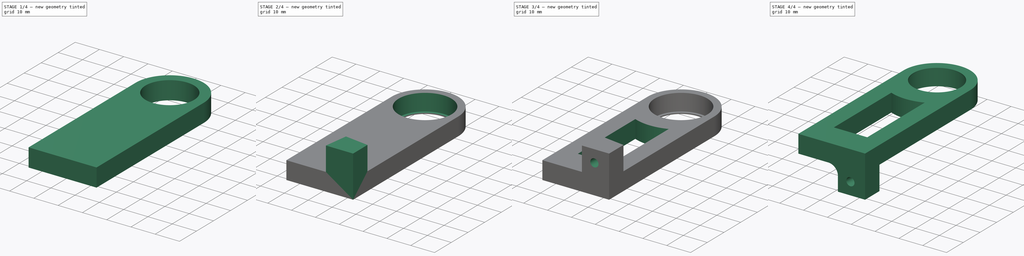
[diagram: build sequence overview — one tinted view per stage of 4, left to right]
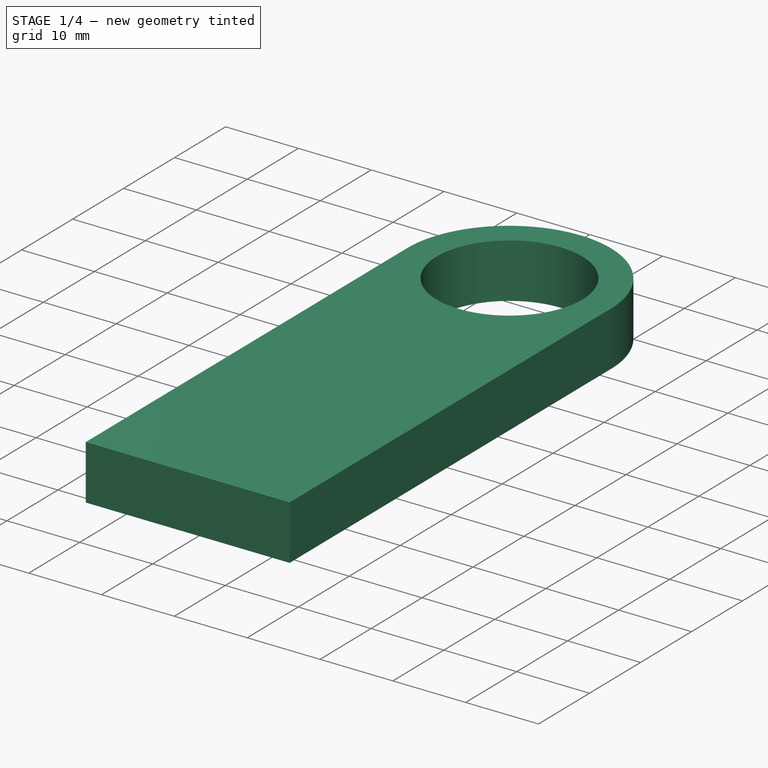
[diagram: stage 1 of 4 — iso view after this stage's code; geometry added in this stage tinted green]
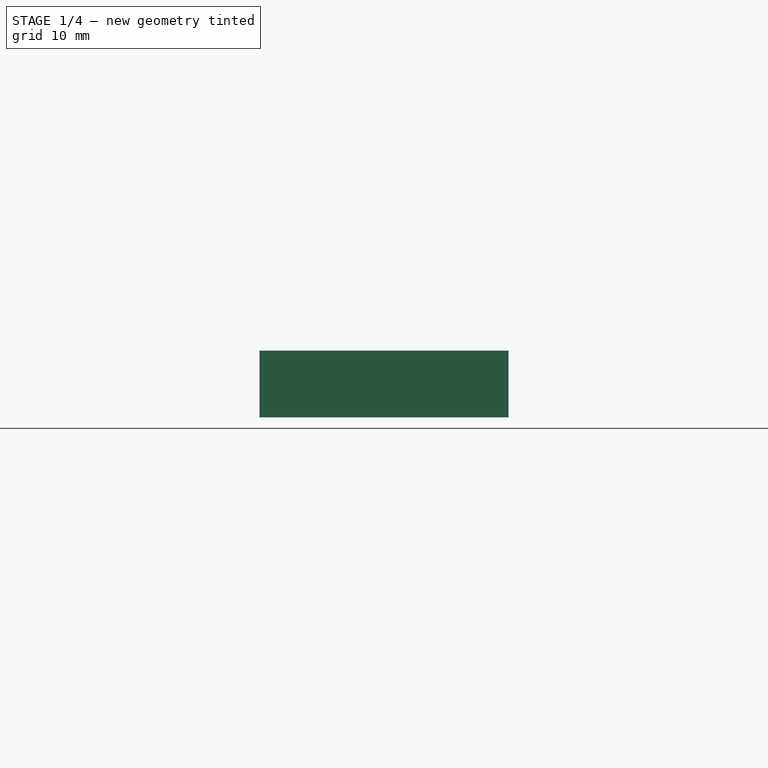
[diagram: stage 1 of 4 — front view after this stage's code; geometry added in this stage tinted green]
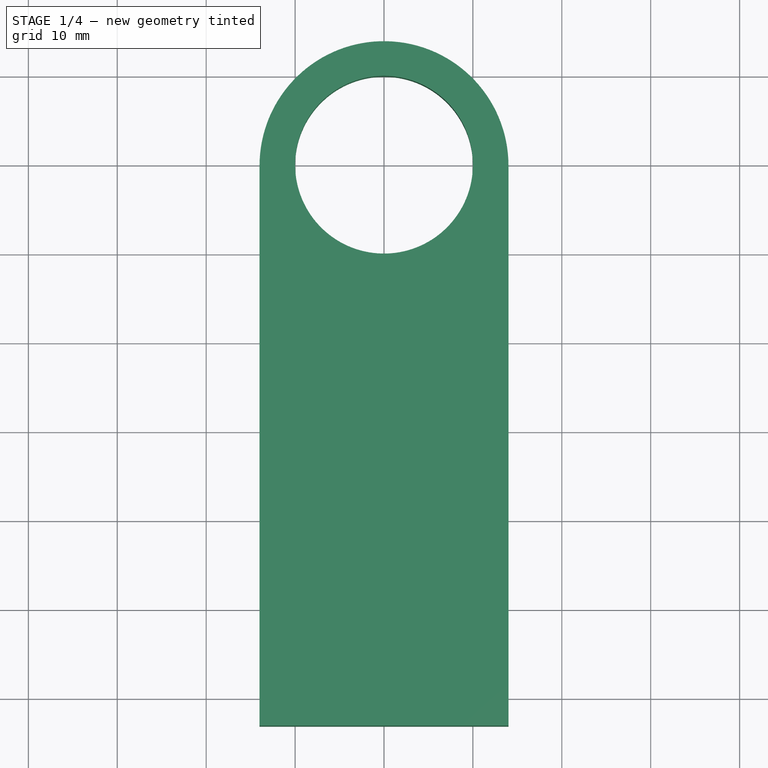
[diagram: stage 1 of 4 — top view after this stage's code; geometry added in this stage tinted green]
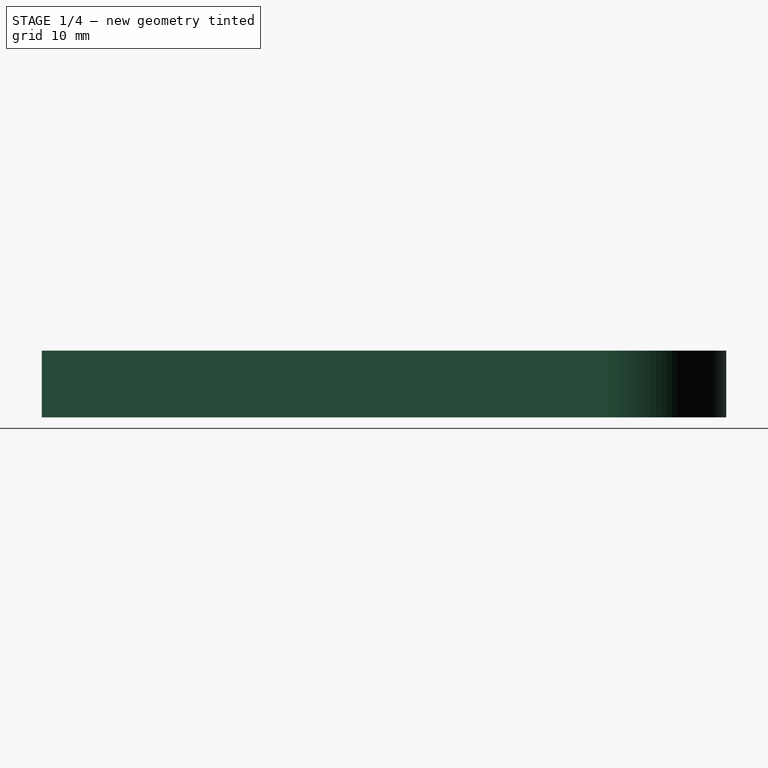
[diagram: stage 1 of 4 — right view after this stage's code; geometry added in this stage tinted green]
FCSTD DOCUMENT  (FreeCAD 0.14R3702 (Git))
Label: soportes-laterales
License: CC-BY 3.0
LicenseURL: http://creativecommons.org/licenses/by/3.0/
objects: Sketcher::SketchObject×7, PartDesign::Pocket×5, Part::Extrusion×1, PartDesign::Pad×1, PartDesign::Chamfer×1, PartDesign::Fillet×1, Part::Mirroring×1
note: 23 computed .brp shape members not serialized (recipe doc carries the construction recipe); baked Part::Feature solids carry a one-line shape summary decoded from their .brp

FEATURE [Sketcher::SketchObject] Sketch002  label="sk-main"
  sketch-geometry (4):
    g0: LineSegment StartX=-14 StartY=-0.10607 StartZ=0 EndX=-14 EndY=-63.1061 EndZ=0
    g1: LineSegment StartX=-14 StartY=-63.1061 StartZ=0 EndX=14 EndY=-63.1061 EndZ=0
    g2: LineSegment StartX=14 StartY=-63.1061 StartZ=0 EndX=14 EndY=-0.10607 EndZ=0
    g3: ArcOfCircle CenterX=0 CenterY=-0.10607 CenterZ=0 NormalX=0 NormalY=0 NormalZ=1 Radius=14 StartAngle=-3.83e-10 EndAngle=3.14159
  constraints (12):
    c: Coincident(g0,g1)
    c: Coincident(g1,g2)
    c: Coincident(g0,g3)
    c: Coincident(g2,g3)
    c: Horizontal(g1)
    c: Vertical(g0)
    c: Vertical(g2)
    c: Tangent(g0,g3)
    c: Equal(g2,g0)
    c: Symmetric(g2,g0,g-2)
    c: Radius(g3) = 14
    c: DistanceY(g2) = 63
FEATURE [Part::Extrusion] Extrude  label="cuerpo-principal"
  Base = -> Sketch002
  Dir = (0,0,7.5)
  Solid = true
FEATURE [Sketcher::SketchObject] Sketch003  label="sk-tope-rodamiento"
  Placement = pos=(0,0,7.5) rot=(0,0,1;0rad)
  Support = -> Extrude [Face6]
  sketch-geometry (1):
    g0: Circle CenterX=0 CenterY=0 CenterZ=0 NormalX=0 NormalY=0 NormalZ=1 Radius=10
  constraints (2):
    c: Radius(g0) = 10
    c: Coincident(g0,g-1)
FEATURE [PartDesign::Pocket] Pocket  label="sk-tope-rodamiento001"
  Length = 7
  Sketch = -> Sketch003
  Type = 1
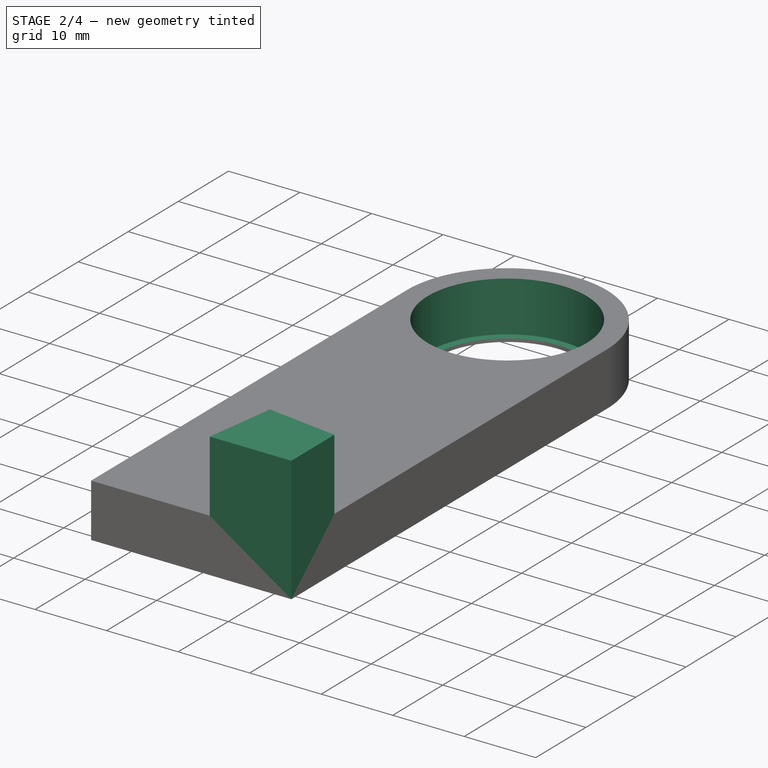
[diagram: stage 2 of 4 — iso view after this stage's code; geometry added in this stage tinted green]
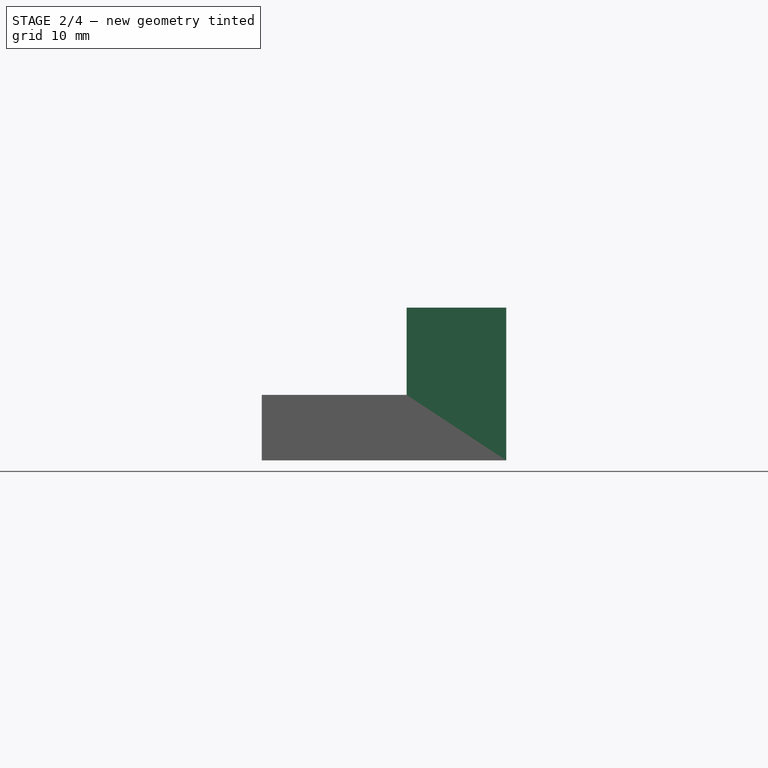
[diagram: stage 2 of 4 — front view after this stage's code; geometry added in this stage tinted green]
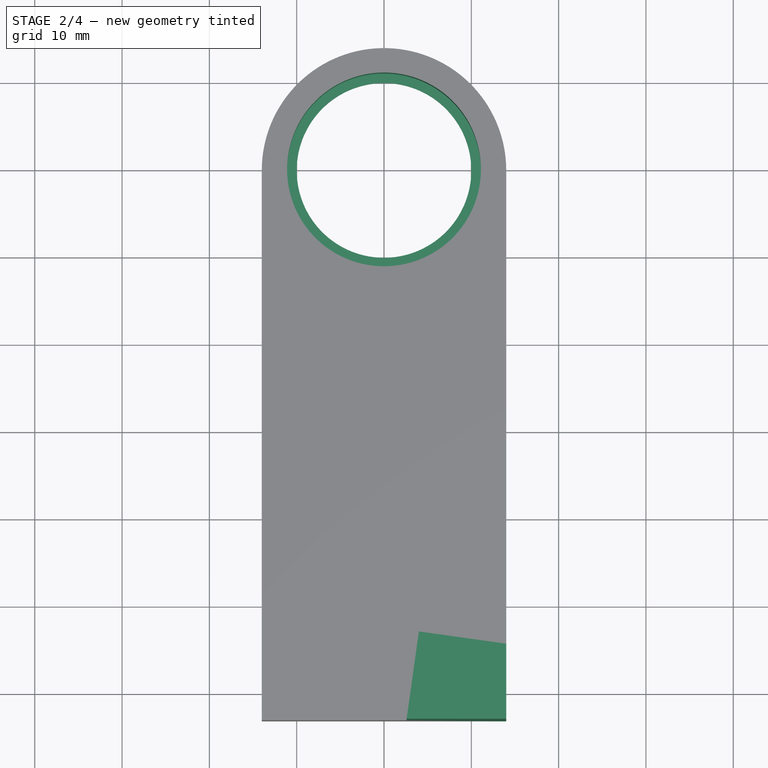
[diagram: stage 2 of 4 — top view after this stage's code; geometry added in this stage tinted green]
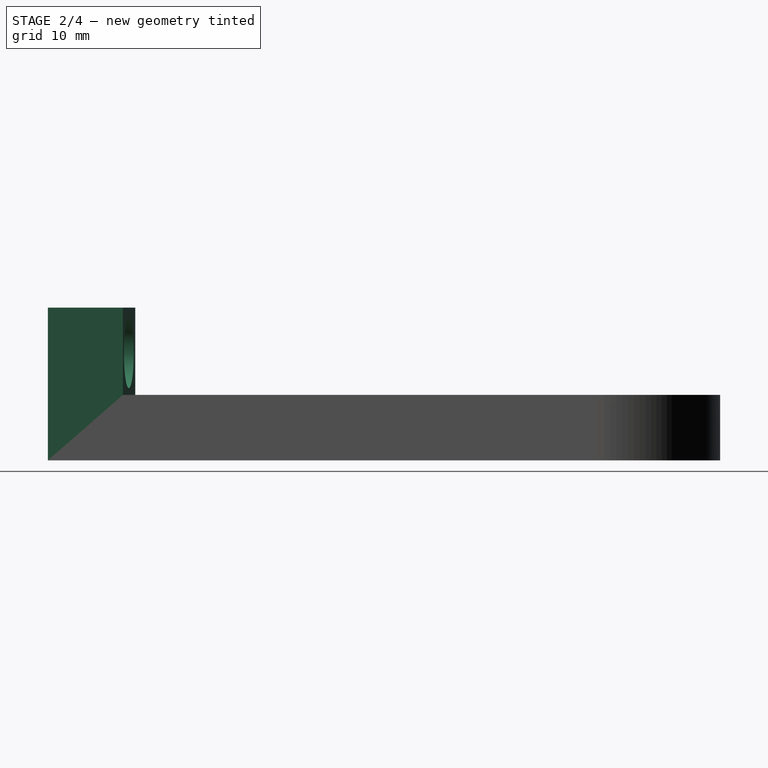
[diagram: stage 2 of 4 — right view after this stage's code; geometry added in this stage tinted green]
FEATURE [Sketcher::SketchObject] Sketch004  label="sk-hueco-rodamento"
  Placement = pos=(0,0,7.5) rot=(0,0,1;0rad)
  Support = -> Pocket [Face5]
  sketch-geometry (1):
    g0: Circle CenterX=0 CenterY=0 CenterZ=0 NormalX=0 NormalY=0 NormalZ=1 Radius=11.1
  constraints (2):
    c: Coincident(g0,g-1)
    c: Radius(g0) = 11.1
FEATURE [PartDesign::Pocket] Pocket001  label="pk-hueco-rodamiento"
  Length = 7.05
  Sketch = -> Sketch004
  Type = 0
FEATURE [Sketcher::SketchObject] Sketch005  label="sk-cubilete-tornillo"
  ExternalGeometry = -> [Pocket001]
  Placement = pos=(0,0,7.5) rot=(0,0,1;0rad)
  Support = -> Pocket001 [Face5]
  sketch-geometry (4):
    g0: LineSegment StartX=4 StartY=-53.1061 StartZ=0 EndX=14 EndY=-54.5115 EndZ=0
    g1: LineSegment StartX=14 StartY=-54.5115 StartZ=0 EndX=14 EndY=-63.1061 EndZ=0
    g2: LineSegment StartX=14 StartY=-63.1061 StartZ=0 EndX=2.59459 EndY=-63.1061 EndZ=0
    g3: LineSegment StartX=2.59459 StartY=-63.1061 StartZ=0 EndX=4 EndY=-53.1061 EndZ=0
  constraints (12):
    c: Coincident(g0,g1)
    c: Coincident(g1,g2)
    c: Coincident(g2,g3)
    c: Coincident(g3,g0)
    c: Horizontal(g2)
    c: Vertical(g1)
    c: PointOnObject(g1,g-3)
    c: DistanceY(g3) = 10
    c: DistanceX(g0) = 10
    c: PointOnObject(g0,g-4)
    c: Angle(g3) = 1.43117
    c: Angle(g3,g0) = 1.5708
FEATURE [PartDesign::Pad] Pad001  label="pad-cubilete-tornillo"
  Length = 10
  Length2 = 5
  Sketch = -> Sketch005
  Type = 0
FEATURE [Sketcher::SketchObject] Sketch006  label="sk-hueco-tornillo"
  ExternalGeometry = -> [Pad001]
  Placement = pos=(-7.24153,-51.5262,0) rot=(0.049385,0.706244,0.706244;3.0429rad)
  Support = -> Pad001 [Face7]
  sketch-geometry (4):
    g0: Circle CenterX=-16.5823 CenterY=12.2697 CenterZ=0 NormalX=0 NormalY=0 NormalZ=1 Radius=4
    g1: LineSegment [constr] StartX=-16.5823 StartY=12.2697 StartZ=0 EndX=-11.352 EndY=12.2697 EndZ=0
    g2: LineSegment [constr] StartX=-16.5823 StartY=12.2697 StartZ=0 EndX=-16.5823 EndY=17.5 EndZ=0
    g3: LineSegment [constr] StartX=-16.22 StartY=12.5 StartZ=0 EndX=-21.4503 EndY=12.5 EndZ=0
  constraints (11):
    c: Vertical(g2)
    c: Horizontal(g1)
    c: Coincident(g0,g1)
    c: Coincident(g0,g2)
    c: PointOnObject(g2,g-5)
    c: PointOnObject(g1,g-4)
    c: Equal(g1,g2)
    c: Horizontal(g3)
    c: PointOnObject(g3,g-3)
    c: Equal(g3,g2)
    c: Radius(g0) = 4
FEATURE [PartDesign::Pocket] Pocket002  label="pk-hueco-tornillo"
  Length = 4
  Sketch = -> Sketch006
  Type = 0
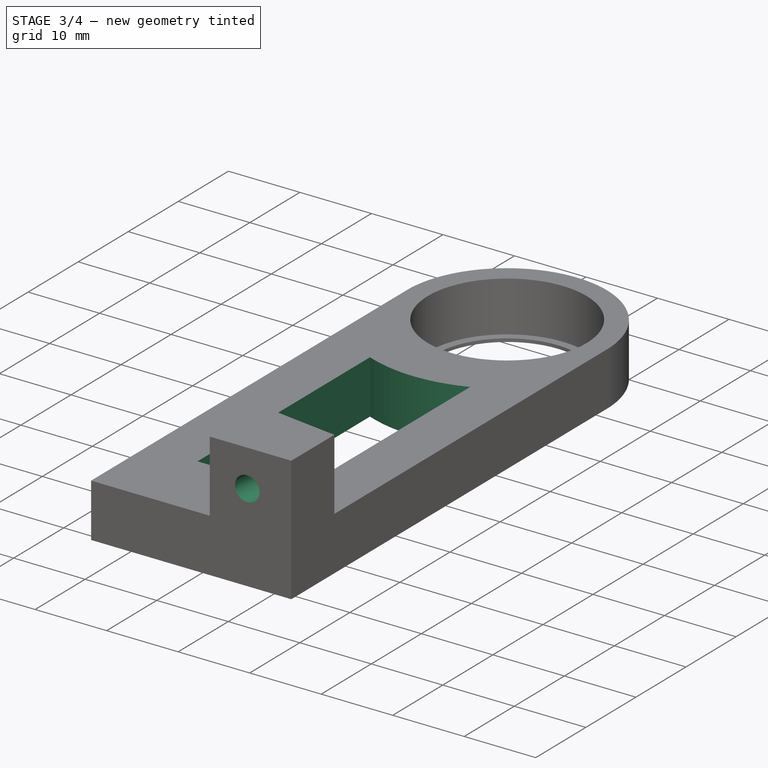
[diagram: stage 3 of 4 — iso view after this stage's code; geometry added in this stage tinted green]
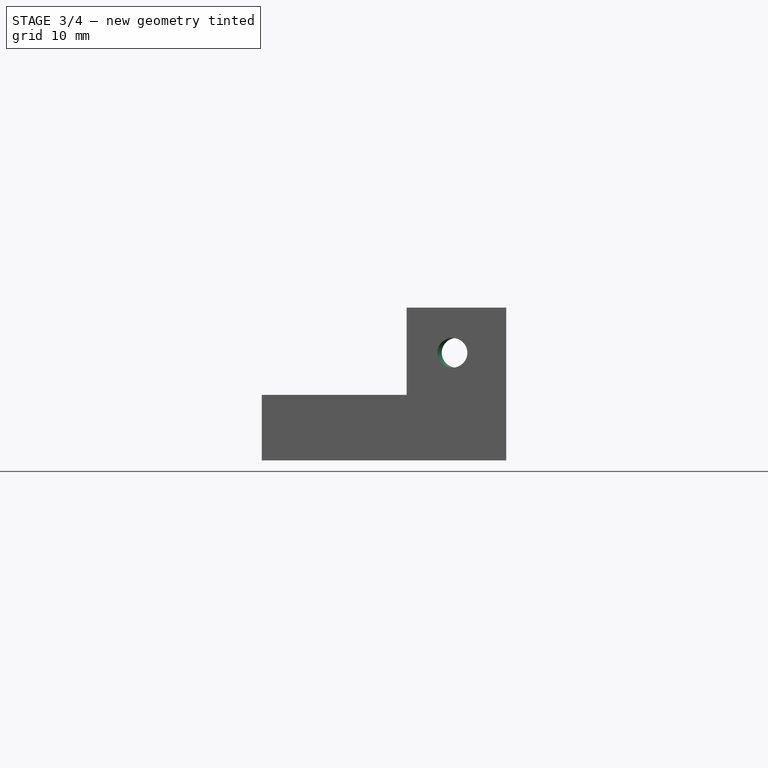
[diagram: stage 3 of 4 — front view after this stage's code; geometry added in this stage tinted green]
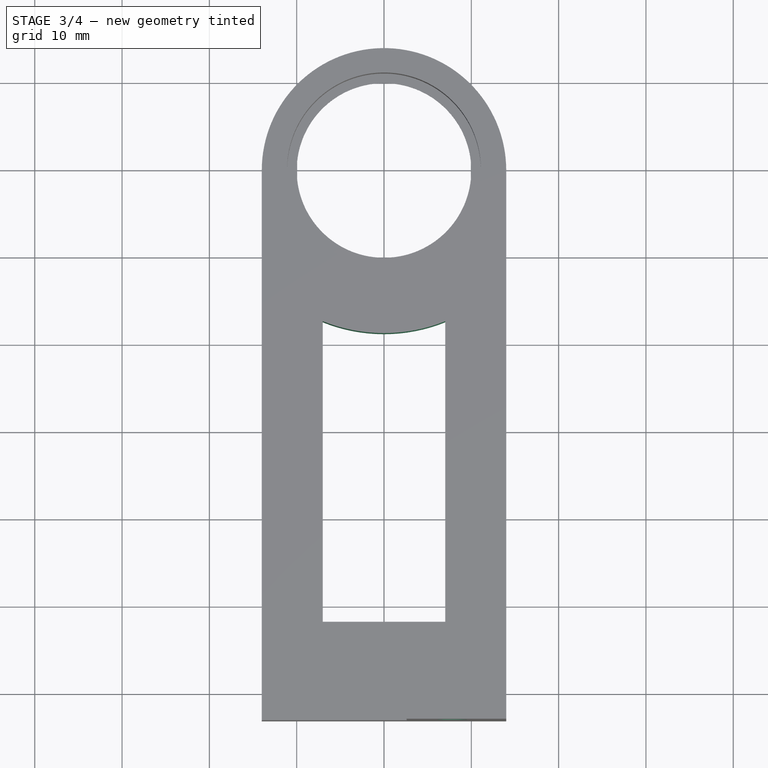
[diagram: stage 3 of 4 — top view after this stage's code; geometry added in this stage tinted green]
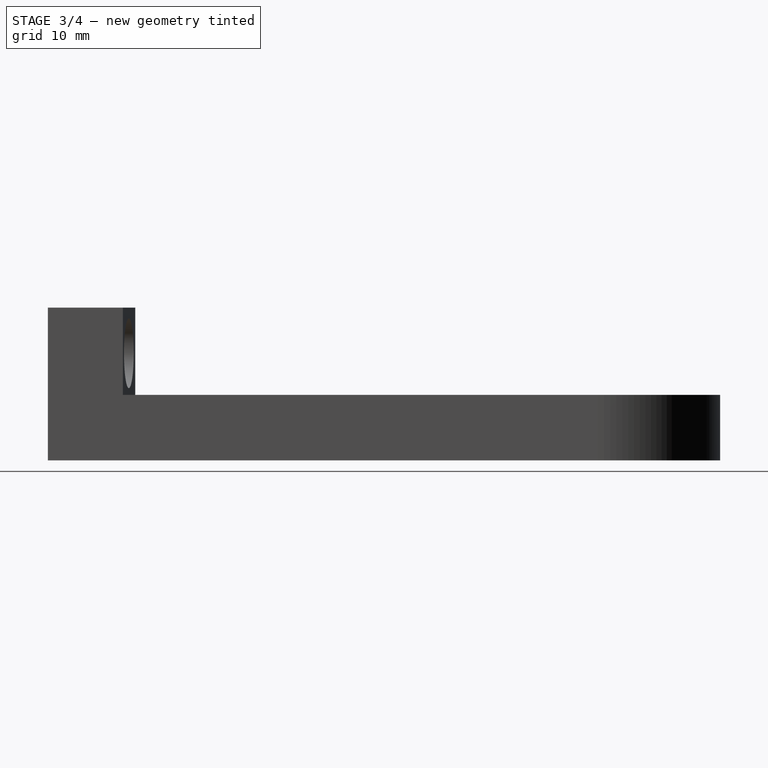
[diagram: stage 3 of 4 — right view after this stage's code; geometry added in this stage tinted green]
FEATURE [Sketcher::SketchObject] Sketch007  label="sk-taladro-tornillo"
  Placement = pos=(-7.79822,-55.4872,0) rot=(0.049385,0.706244,0.706244;3.0429rad)
  Support = -> Pocket002 [Face14]
  sketch-geometry (1):
    g0: Circle CenterX=-16.5361 CenterY=12.323 CenterZ=0 NormalX=0 NormalY=0 NormalZ=1 Radius=1.7
  constraints (1):
    c: Radius(g0) = 1.7
FEATURE [PartDesign::Pocket] Pocket003  label="pk-taladro-tornillo"
  Length = 5
  Sketch = -> Sketch007
  Type = 1
FEATURE [PartDesign::Chamfer] Chamfer  label="chanfer-tornillo"
  Base = -> Pocket003 [Edge25]
  Size = 2
FEATURE [Sketcher::SketchObject] Sketch008  label="sk-vaciado-cuerpo"
  ExternalGeometry = -> [Chamfer]
  Placement = pos=(0,0,7.5) rot=(0,0,1;0rad)
  Support = -> Chamfer [Face7]
  sketch-geometry (4):
    g0: ArcOfCircle CenterX=0 CenterY=0 CenterZ=0 NormalX=0 NormalY=0 NormalZ=1 Radius=18.7545 StartAngle=4.32924 EndAngle=5.09554
    g1: LineSegment StartX=-7.01127 StartY=-17.3947 StartZ=0 EndX=-7.01127 EndY=-51.8242 EndZ=0
    g2: LineSegment StartX=7.01127 StartY=-51.8242 StartZ=0 EndX=7.01127 EndY=-17.3947 EndZ=0
    g3: LineSegment StartX=-7.01127 StartY=-51.8242 StartZ=0 EndX=7.01127 EndY=-51.8242 EndZ=0
  constraints (9):
    c: Coincident(g0,g-3)
    c: Coincident(g0,g2)
    c: Coincident(g0,g1)
    c: Vertical(g1)
    c: Vertical(g2)
    c: Symmetric(g0,g0,g-2)
    c: Coincident(g1,g3)
    c: Coincident(g2,g3)
    c: Horizontal(g3)
FEATURE [PartDesign::Pocket] Pocket004  label="pk-vaciado-cuerpo"
  Length = 5
  Sketch = -> Sketch008
  Type = 1
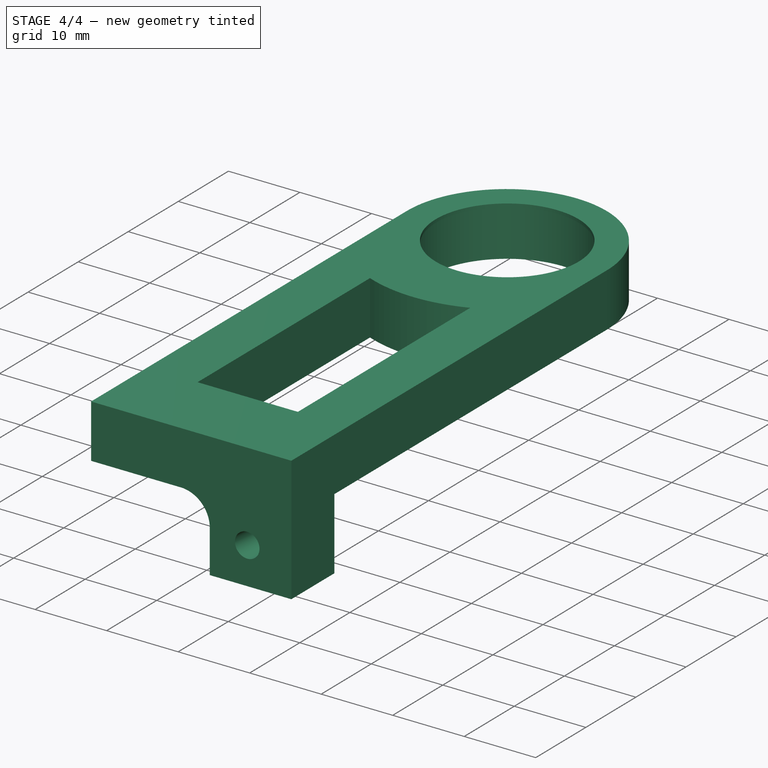
[diagram: stage 4 of 4 — iso view after this stage's code; geometry added in this stage tinted green]
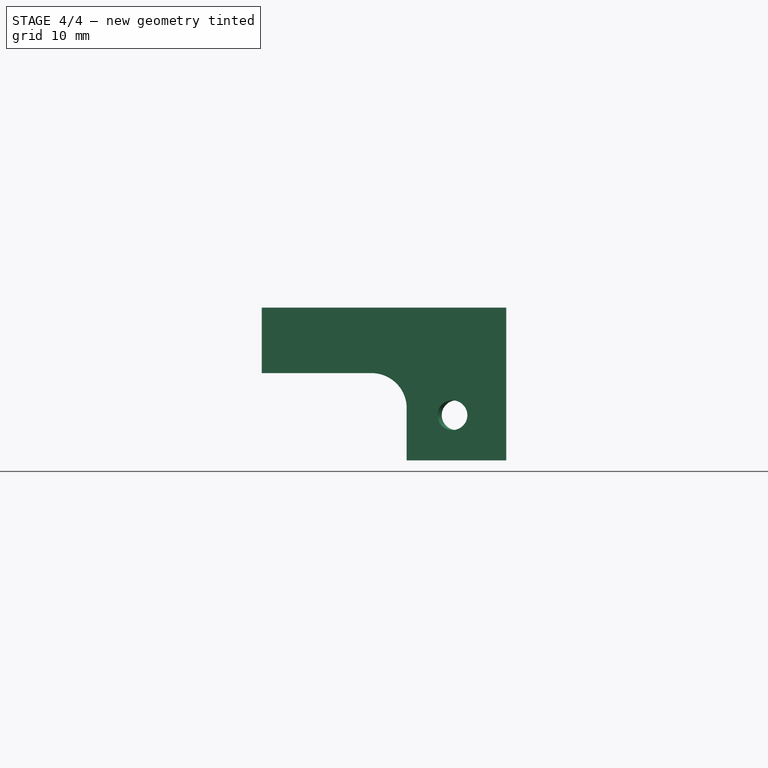
[diagram: stage 4 of 4 — front view after this stage's code; geometry added in this stage tinted green]
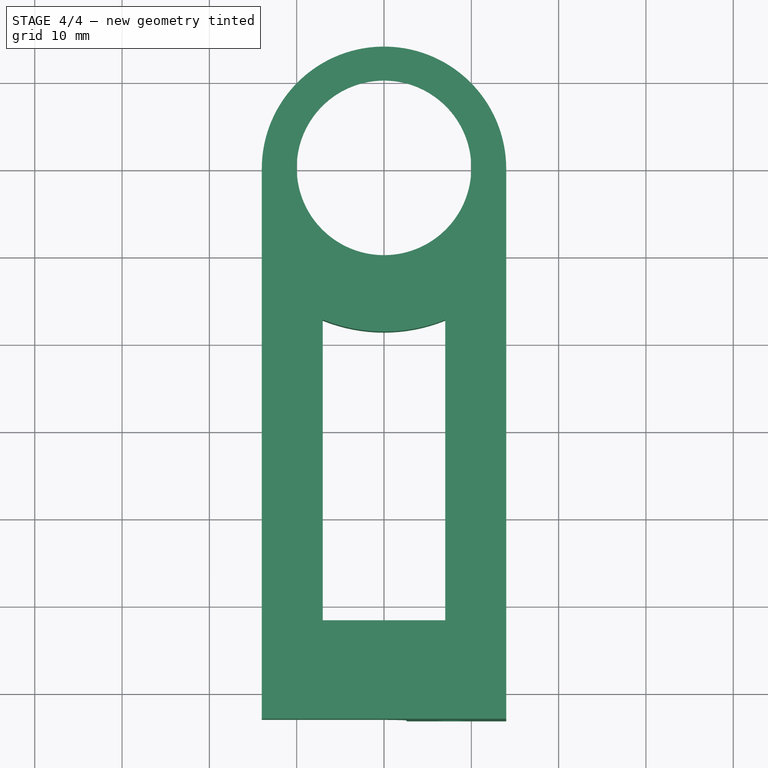
[diagram: stage 4 of 4 — top view after this stage's code; geometry added in this stage tinted green]
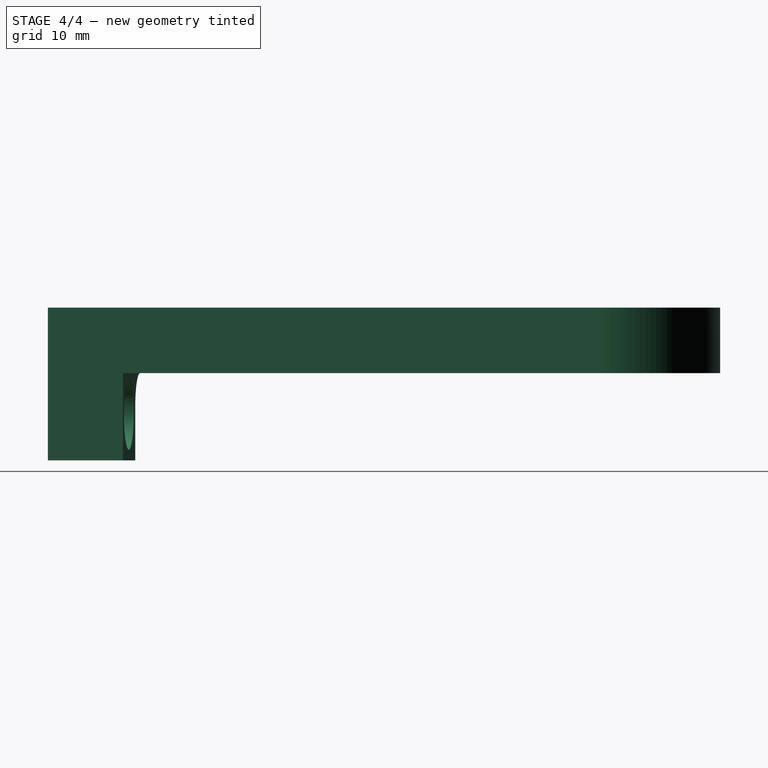
[diagram: stage 4 of 4 — right view after this stage's code; geometry added in this stage tinted green]
FEATURE [PartDesign::Fillet] Fillet  label="soporte-lateral"
  Base = -> Pocket004 [Edge25]
  Radius = 4
FEATURE [Part::Mirroring] Part__Mirroring  label="soporte-lateral (Mirror)"
  Base = (0,0,0)
  Normal = (0,0,1)
  Placement = pos=(0,0,-29) rot=(0,0,1;0rad)
  Source = -> Fillet
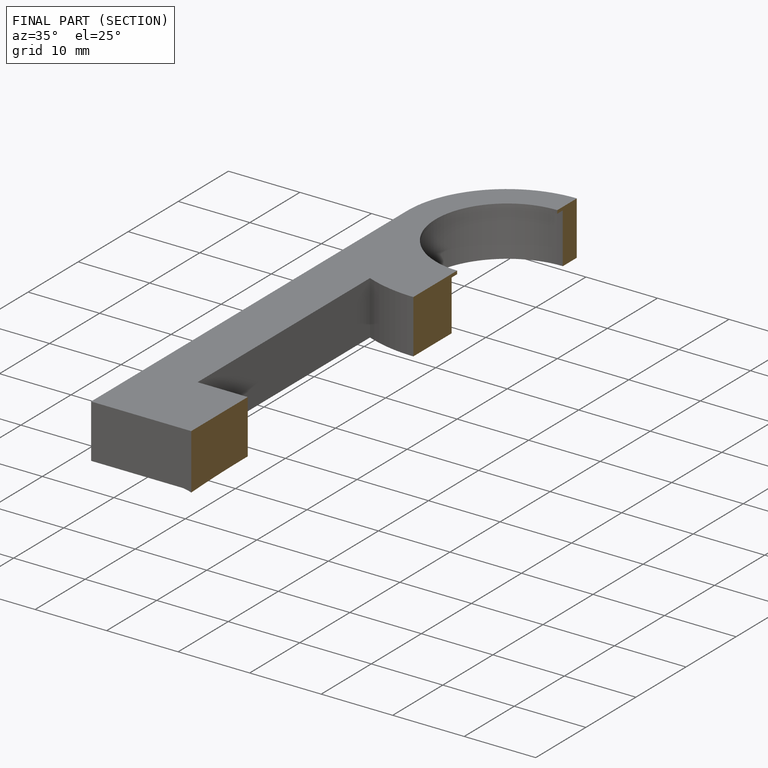
[diagram: finished part — half-section view (interior)]
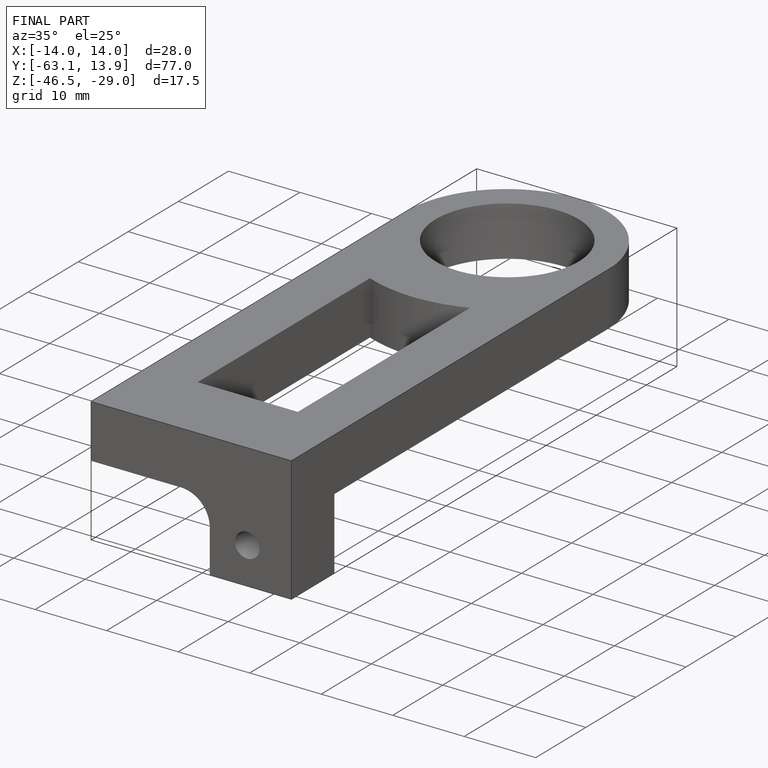
[diagram: finished part — iso view with bounding-box wireframe]
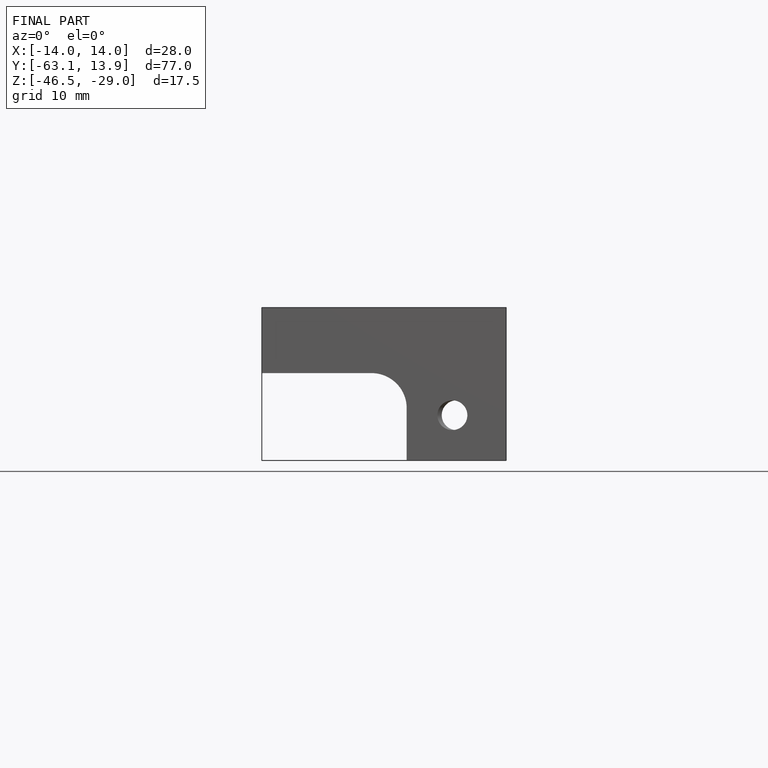
[diagram: finished part — front view with bounding-box wireframe]
